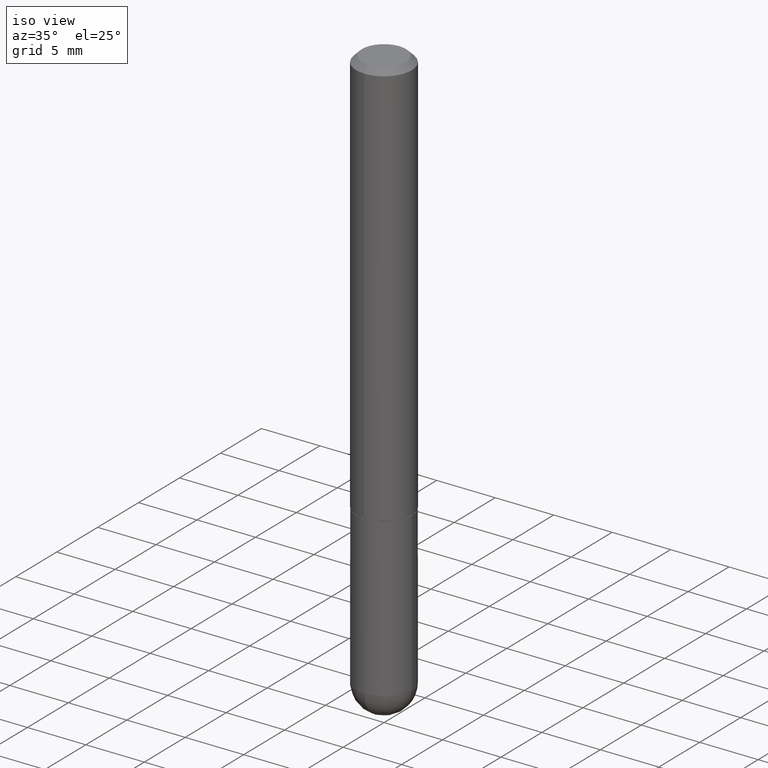
[diagram: clean part render]
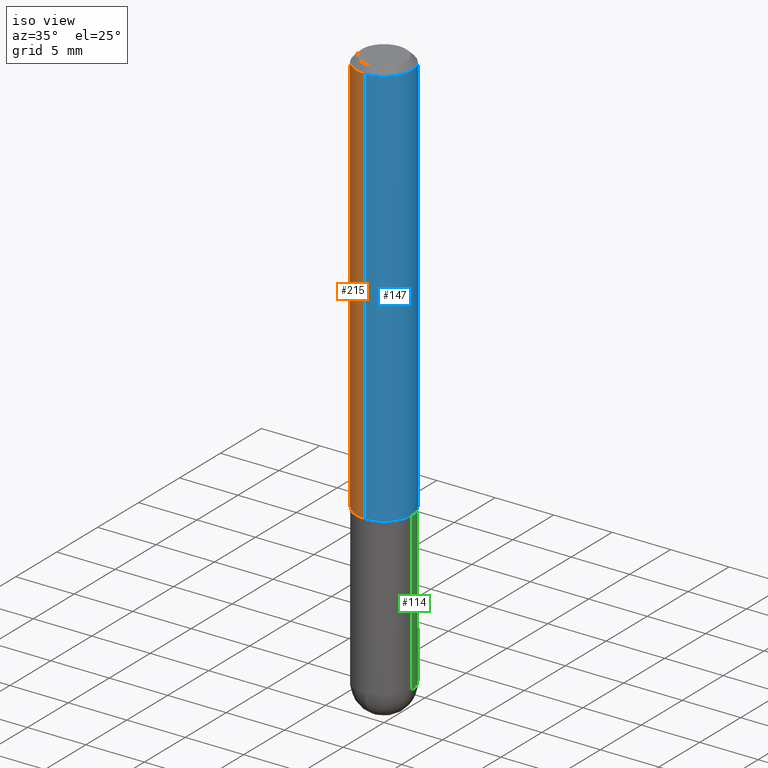
[diagram: same view with three faces highlighted in distinct colors, each labeled with its STEP entity id]
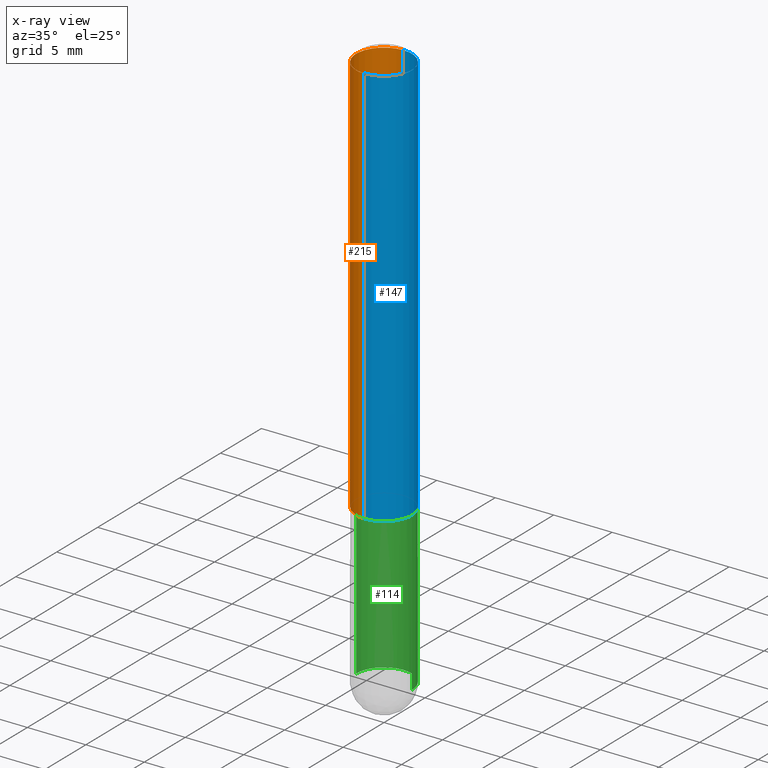
[diagram: x-ray of the same camera — body ghosted, the three highlighted faces saturated]
A machine part, iso view with three faces highlighted in distinct colors.
The next image is the same camera in x-ray (body ghosted, the three faces saturated) — at least one of them is partly hidden behind the body in this view.
Their STEP definitions:

[orange] entity #215 — the highlighted cylindrical surface (edge-blend (fillet) strip) has radius 2.3813 mm, axis along (-0, 0, 1).
#19 = CARTESIAN_POINT ( 'NONE',  ( -6.546527510330880958E-16, -0.09375000000000009714, 3.274165243096026796E-16 ) ) ;
#36 = VERTEX_POINT ( 'NONE', #71 ) ;
#46 = EDGE_CURVE ( 'NONE', #36, #110, #240, .T. ) ;
#56 = CYLINDRICAL_SURFACE ( 'NONE', #111, 0.09375000000000009714 ) ;
#71 = CARTESIAN_POINT ( 'NONE',  ( -6.546527510330552594E-16, -0.09375000000000499600, -1.373999999999999666 ) ) ;
#81 = CIRCLE ( 'NONE', #314, 0.09375000000000019429 ) ;
#83 = VERTEX_POINT ( 'NONE', #152 ) ;
#110 = VERTEX_POINT ( 'NONE', #341 ) ;
#111 = AXIS2_PLACEMENT_3D ( 'NONE', #157, #285, #410 ) ;
#116 = EDGE_LOOP ( 'NONE', ( #201, #336, #196, #238 ) ) ;
#129 = LINE ( 'NONE', #384, #290 ) ;
#152 = CARTESIAN_POINT ( 'NONE',  ( 6.546527510330878985E-16, 0.09374999999999991673, -0.02000000000000034736 ) ) ;
#157 = CARTESIAN_POINT ( 'NONE',  ( 0.000000000000000000, 0.000000000000000000, 0.000000000000000000 ) ) ;
#170 = CIRCLE ( 'NONE', #222, 0.09374999999999998612 ) ;
#192 = FACE_OUTER_BOUND ( 'NONE', #116, .T. ) ;
#195 = DIRECTION ( 'NONE',  ( -2.444797333483953649E-29, 3.492442925969092620E-15, 1.000000000000000000 ) ) ;
#196 = ORIENTED_EDGE ( 'NONE', *, *, #46, .T. ) ;
#198 = DIRECTION ( 'NONE',  ( -2.444797333483953649E-29, 3.492442925969092226E-15, 1.000000000000000000 ) ) ;
#201 = ORIENTED_EDGE ( 'NONE', *, *, #398, .F. ) ;
#203 = DIRECTION ( 'NONE',  ( -2.444797333483953649E-29, 3.492442925969092620E-15, 1.000000000000000000 ) ) ;
#211 = EDGE_CURVE ( 'NONE', #83, #110, #170, .T. ) ;
#215 = ADVANCED_FACE ( 'NONE', ( #192 ), #56, .T. ) ;
#216 = VECTOR ( 'NONE', #203, 39.37007874015748143 ) ;
#220 = DIRECTION ( 'NONE',  ( -2.444797333483953649E-29, 3.492442925969092226E-15, 1.000000000000000000 ) ) ;
#222 = AXIS2_PLACEMENT_3D ( 'NONE', #247, #220, #343 ) ;
#228 = DIRECTION ( 'NONE',  ( -6.982962677686266711E-15, -1.000000000000000000, 2.913971193241874850E-15 ) ) ;
#234 = CARTESIAN_POINT ( 'NONE',  ( 3.359151536206952494E-29, -4.798616580281532316E-15, -1.373999999999999888 ) ) ;
#238 = ORIENTED_EDGE ( 'NONE', *, *, #211, .F. ) ;
#240 = LINE ( 'NONE', #19, #216 ) ;
#247 = CARTESIAN_POINT ( 'NONE',  ( 4.889594666967911153E-31, -6.984885851938190023E-17, -0.02000000000000001776 ) ) ;
#259 = EDGE_CURVE ( 'NONE', #367, #36, #81, .T. ) ;
#285 = DIRECTION ( 'NONE',  ( -2.444797333483953649E-29, 3.492442925969092226E-15, 1.000000000000000000 ) ) ;
#290 = VECTOR ( 'NONE', #195, 39.37007874015748143 ) ;
#314 = AXIS2_PLACEMENT_3D ( 'NONE', #234, #198, #228 ) ;
#336 = ORIENTED_EDGE ( 'NONE', *, *, #259, .T. ) ;
#341 = CARTESIAN_POINT ( 'NONE',  ( -6.431716872910804923E-16, -0.09375000000000005551, -0.01999999999999968817 ) ) ;
#343 = DIRECTION ( 'NONE',  ( -6.982962677686266711E-15, -1.000000000000000000, 3.505871591869138487E-15 ) ) ;
#367 = VERTEX_POINT ( 'NONE', #380 ) ;
#380 = CARTESIAN_POINT ( 'NONE',  ( 6.661338147751117722E-16, 0.09374999999999537870, -1.374000000000000110 ) ) ;
#384 = CARTESIAN_POINT ( 'NONE',  ( 6.661338147750944173E-16, 0.09375000000000009714, -3.274165243096026796E-16 ) ) ;
#398 = EDGE_CURVE ( 'NONE', #367, #83, #129, .T. ) ;
#410 = DIRECTION ( 'NONE',  ( -6.982962677686265922E-15, -1.000000000000000000, 3.492442925969091437E-15 ) ) ;

[blue] entity #147 — the highlighted cylindrical surface (edge-blend (fillet) strip) has radius 2.3813 mm, axis along (-0, 0, 1).
#19 = CARTESIAN_POINT ( 'NONE',  ( -6.546527510330880958E-16, -0.09375000000000009714, 3.274165243096026796E-16 ) ) ;
#23 = CYLINDRICAL_SURFACE ( 'NONE', #26, 0.09375000000000009714 ) ;
#26 = AXIS2_PLACEMENT_3D ( 'NONE', #276, #373, #120 ) ;
#36 = VERTEX_POINT ( 'NONE', #71 ) ;
#46 = EDGE_CURVE ( 'NONE', #36, #110, #240, .T. ) ;
#52 = DIRECTION ( 'NONE',  ( -2.444797333483953649E-29, 3.492442925969092226E-15, 1.000000000000000000 ) ) ;
#55 = EDGE_CURVE ( 'NONE', #36, #367, #408, .T. ) ;
#57 = DIRECTION ( 'NONE',  ( -6.982962677686266711E-15, -1.000000000000000000, 3.505871591869138487E-15 ) ) ;
#71 = CARTESIAN_POINT ( 'NONE',  ( -6.546527510330552594E-16, -0.09375000000000499600, -1.373999999999999666 ) ) ;
#77 = DIRECTION ( 'NONE',  ( -6.982962677686266711E-15, -1.000000000000000000, 2.913971193241874850E-15 ) ) ;
#83 = VERTEX_POINT ( 'NONE', #152 ) ;
#87 = CARTESIAN_POINT ( 'NONE',  ( 4.889594666967911153E-31, -6.984885851938190023E-17, -0.02000000000000001776 ) ) ;
#90 = EDGE_CURVE ( 'NONE', #110, #83, #269, .T. ) ;
#95 = ORIENTED_EDGE ( 'NONE', *, *, #398, .T. ) ;
#110 = VERTEX_POINT ( 'NONE', #341 ) ;
#120 = DIRECTION ( 'NONE',  ( -6.982962677686265922E-15, -1.000000000000000000, 3.492442925969091437E-15 ) ) ;
#129 = LINE ( 'NONE', #384, #290 ) ;
#147 = ADVANCED_FACE ( 'NONE', ( #221 ), #23, .T. ) ;
#152 = CARTESIAN_POINT ( 'NONE',  ( 6.546527510330878985E-16, 0.09374999999999991673, -0.02000000000000034736 ) ) ;
#184 = AXIS2_PLACEMENT_3D ( 'NONE', #87, #52, #57 ) ;
#191 = AXIS2_PLACEMENT_3D ( 'NONE', #275, #400, #77 ) ;
#195 = DIRECTION ( 'NONE',  ( -2.444797333483953649E-29, 3.492442925969092620E-15, 1.000000000000000000 ) ) ;
#203 = DIRECTION ( 'NONE',  ( -2.444797333483953649E-29, 3.492442925969092620E-15, 1.000000000000000000 ) ) ;
#208 = ORIENTED_EDGE ( 'NONE', *, *, #90, .F. ) ;
#216 = VECTOR ( 'NONE', #203, 39.37007874015748143 ) ;
#221 = FACE_OUTER_BOUND ( 'NONE', #246, .T. ) ;
#240 = LINE ( 'NONE', #19, #216 ) ;
#246 = EDGE_LOOP ( 'NONE', ( #258, #95, #208, #349 ) ) ;
#258 = ORIENTED_EDGE ( 'NONE', *, *, #55, .T. ) ;
#269 = CIRCLE ( 'NONE', #184, 0.09374999999999998612 ) ;
#275 = CARTESIAN_POINT ( 'NONE',  ( 3.359151536206952494E-29, -4.798616580281532316E-15, -1.373999999999999888 ) ) ;
#276 = CARTESIAN_POINT ( 'NONE',  ( 0.000000000000000000, 0.000000000000000000, 0.000000000000000000 ) ) ;
#290 = VECTOR ( 'NONE', #195, 39.37007874015748143 ) ;
#341 = CARTESIAN_POINT ( 'NONE',  ( -6.431716872910804923E-16, -0.09375000000000005551, -0.01999999999999968817 ) ) ;
#349 = ORIENTED_EDGE ( 'NONE', *, *, #46, .F. ) ;
#367 = VERTEX_POINT ( 'NONE', #380 ) ;
#373 = DIRECTION ( 'NONE',  ( -2.444797333483953649E-29, 3.492442925969092226E-15, 1.000000000000000000 ) ) ;
#380 = CARTESIAN_POINT ( 'NONE',  ( 6.661338147751117722E-16, 0.09374999999999537870, -1.374000000000000110 ) ) ;
#384 = CARTESIAN_POINT ( 'NONE',  ( 6.661338147750944173E-16, 0.09375000000000009714, -3.274165243096026796E-16 ) ) ;
#398 = EDGE_CURVE ( 'NONE', #367, #83, #129, .T. ) ;
#400 = DIRECTION ( 'NONE',  ( -2.444797333483953649E-29, 3.492442925969092226E-15, 1.000000000000000000 ) ) ;
#408 = CIRCLE ( 'NONE', #191, 0.09375000000000019429 ) ;

[green] entity #114 — the highlighted cylindrical surface (edge-blend (fillet) strip) has radius 2.3813 mm, axis along (-0, 0, 1).
#1 = CIRCLE ( 'NONE', #197, 0.09375000000000001388 ) ;
#8 = VERTEX_POINT ( 'NONE', #335 ) ;
#25 = DIRECTION ( 'NONE',  ( 1.000000000000000000, -6.982962677686265922E-15, 4.876176775795935793E-29 ) ) ;
#34 = DIRECTION ( 'NONE',  ( -2.445468806185136597E-29, 3.491481338843145583E-15, 1.000000000000000000 ) ) ;
#45 = AXIS2_PLACEMENT_3D ( 'NONE', #213, #214, #337 ) ;
#50 = CYLINDRICAL_SURFACE ( 'NONE', #58, 0.09375000000000001388 ) ;
#58 = AXIS2_PLACEMENT_3D ( 'NONE', #339, #124, #25 ) ;
#65 = VERTEX_POINT ( 'NONE', #251 ) ;
#92 = CIRCLE ( 'NONE', #327, 0.09375000000000001388 ) ;
#101 = ORIENTED_EDGE ( 'NONE', *, *, #318, .T. ) ;
#109 = EDGE_CURVE ( 'NONE', #65, #176, #223, .T. ) ;
#114 = ADVANCED_FACE ( 'NONE', ( #126 ), #50, .T. ) ;
#124 = DIRECTION ( 'NONE',  ( -2.445468806185136597E-29, 3.491481338843145583E-15, 1.000000000000000000 ) ) ;
#126 = FACE_OUTER_BOUND ( 'NONE', #174, .T. ) ;
#164 = DIRECTION ( 'NONE',  ( -2.445468806185136597E-29, 3.491481338843145583E-15, 1.000000000000000000 ) ) ;
#166 = EDGE_CURVE ( 'NONE', #305, #65, #375, .T. ) ;
#174 = EDGE_LOOP ( 'NONE', ( #101, #385, #358, #333, #391 ) ) ;
#176 = VERTEX_POINT ( 'NONE', #311 ) ;
#177 = VECTOR ( 'NONE', #308, 39.37007874015748143 ) ;
#193 = CARTESIAN_POINT ( 'NONE',  ( 4.661674911790416638E-29, -6.655636302169745441E-15, -1.906250000000000000 ) ) ;
#197 = AXIS2_PLACEMENT_3D ( 'NONE', #323, #34, #315 ) ;
#213 = CARTESIAN_POINT ( 'NONE',  ( 3.362519608504562260E-29, -4.800786840909324930E-15, -1.375000000000000000 ) ) ;
#214 = DIRECTION ( 'NONE',  ( -2.445468806185136597E-29, 3.491481338843145583E-15, 1.000000000000000000 ) ) ;
#223 = CIRCLE ( 'NONE', #45, 0.09375000000000001388 ) ;
#232 = CARTESIAN_POINT ( 'NONE',  ( 0.09375000000000001388, -6.382864322572621901E-15, -1.906250000000000000 ) ) ;
#251 = CARTESIAN_POINT ( 'NONE',  ( 0.09375000000000001388, -5.455439591942412434E-15, -1.375000000000000000 ) ) ;
#294 = VERTEX_POINT ( 'NONE', #357 ) ;
#305 = VERTEX_POINT ( 'NONE', #232 ) ;
#308 = DIRECTION ( 'NONE',  ( -2.445468806185136877E-29, 3.491481338843145188E-15, 1.000000000000000000 ) ) ;
#311 = CARTESIAN_POINT ( 'NONE',  ( -0.09375000000000001388, -5.062077756764441261E-15, -1.375000000000000000 ) ) ;
#312 = EDGE_CURVE ( 'NONE', #305, #8, #1, .T. ) ;
#315 = DIRECTION ( 'NONE',  ( 1.000000000000000000, -6.982962677686261189E-15, 0.000000000000000000 ) ) ;
#318 = EDGE_CURVE ( 'NONE', #8, #294, #92, .T. ) ;
#323 = CARTESIAN_POINT ( 'NONE',  ( 4.661674911790416638E-29, -6.655636302169745441E-15, -1.906250000000000000 ) ) ;
#327 = AXIS2_PLACEMENT_3D ( 'NONE', #193, #164, #347 ) ;
#331 = EDGE_CURVE ( 'NONE', #294, #176, #351, .T. ) ;
#333 = ORIENTED_EDGE ( 'NONE', *, *, #166, .F. ) ;
#335 = CARTESIAN_POINT ( 'NONE',  ( 6.546527510331332580E-16, 0.09374999999999322764, -1.906250000000000222 ) ) ;
#337 = DIRECTION ( 'NONE',  ( 1.000000000000000000, -6.982962677686261189E-15, 0.000000000000000000 ) ) ;
#339 = CARTESIAN_POINT ( 'NONE',  ( 0.000000000000000000, 0.000000000000000000, 0.000000000000000000 ) ) ;
#347 = DIRECTION ( 'NONE',  ( 1.000000000000000000, -6.982962677686261189E-15, 0.000000000000000000 ) ) ;
#350 = CARTESIAN_POINT ( 'NONE',  ( -0.09375000000000001388, 6.661338147750940229E-16, -4.611501647113973995E-30 ) ) ;
#351 = LINE ( 'NONE', #350, #382 ) ;
#357 = CARTESIAN_POINT ( 'NONE',  ( -0.09375000000000001388, -5.062077756764441261E-15, -1.906250000000000000 ) ) ;
#358 = ORIENTED_EDGE ( 'NONE', *, *, #109, .F. ) ;
#375 = LINE ( 'NONE', #404, #177 ) ;
#382 = VECTOR ( 'NONE', #412, 39.37007874015748143 ) ;
#385 = ORIENTED_EDGE ( 'NONE', *, *, #331, .T. ) ;
#391 = ORIENTED_EDGE ( 'NONE', *, *, #312, .T. ) ;
#404 = CARTESIAN_POINT ( 'NONE',  ( 0.09375000000000001388, -6.546527510330875041E-16, 4.571415727308690506E-30 ) ) ;
#412 = DIRECTION ( 'NONE',  ( -2.445468806185136877E-29, 3.491481338843145188E-15, 1.000000000000000000 ) ) ;